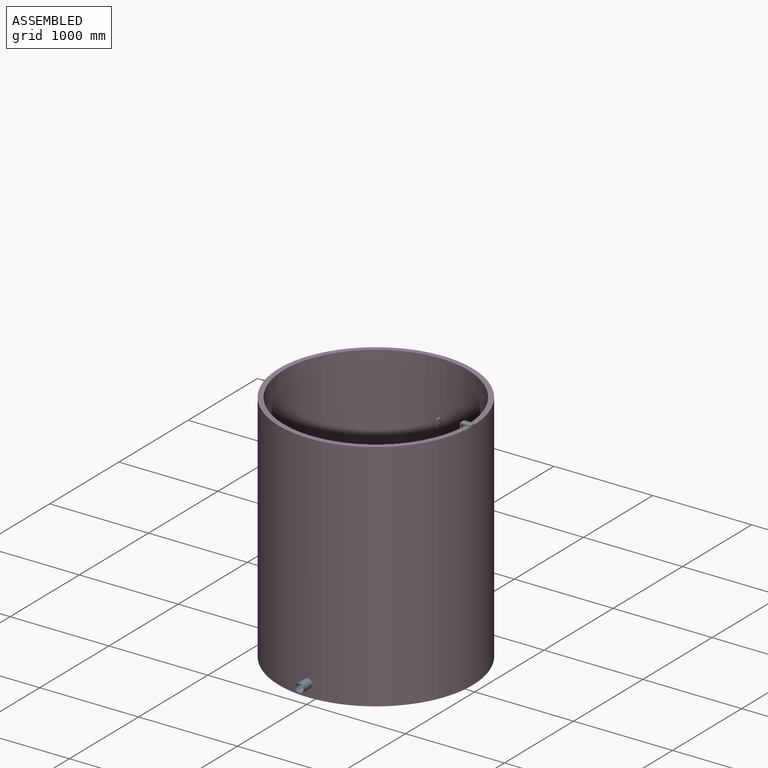
[diagram: assembled view]
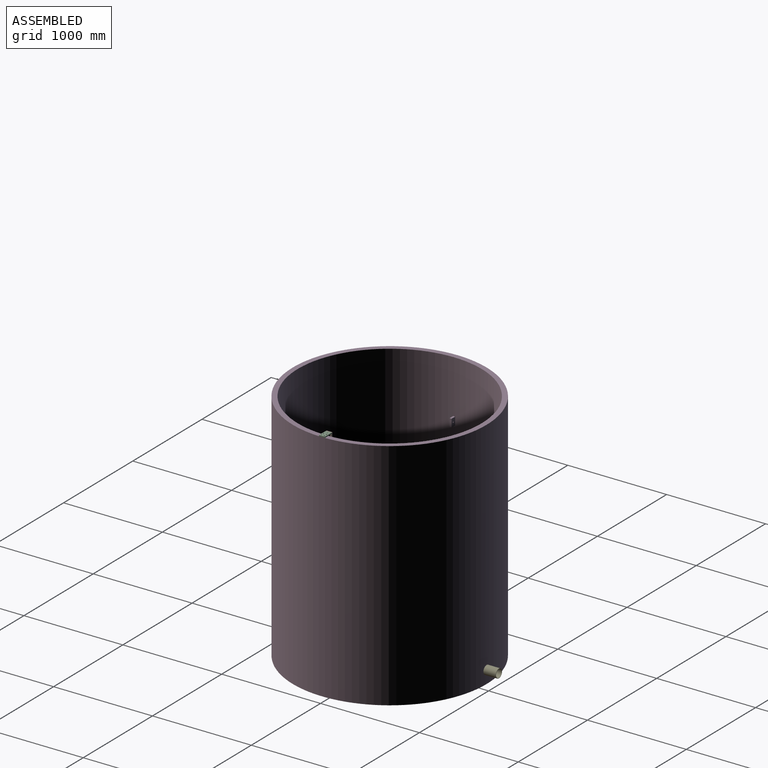
[diagram: assembled view, second angle]
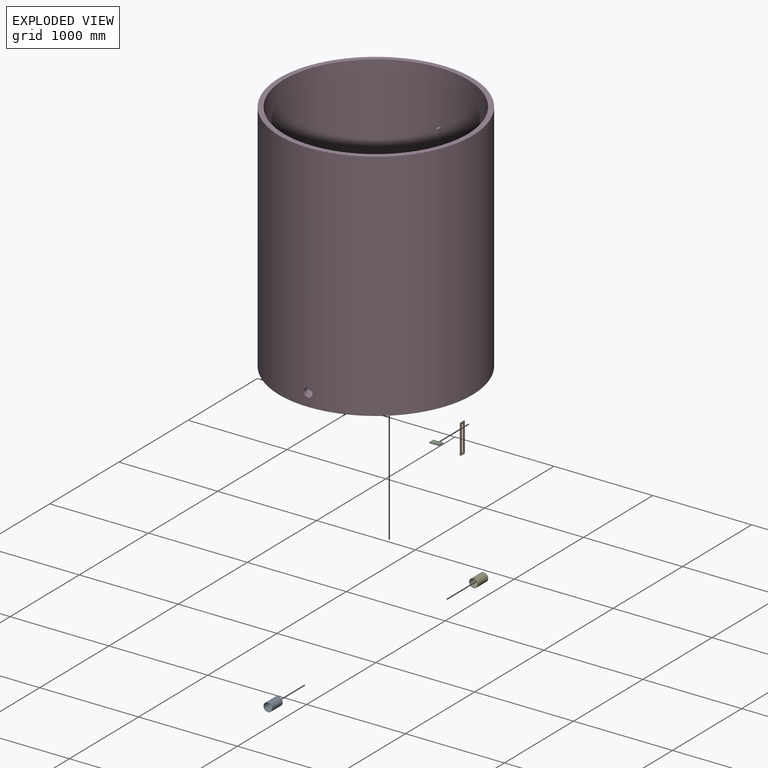
[diagram: exploded view]
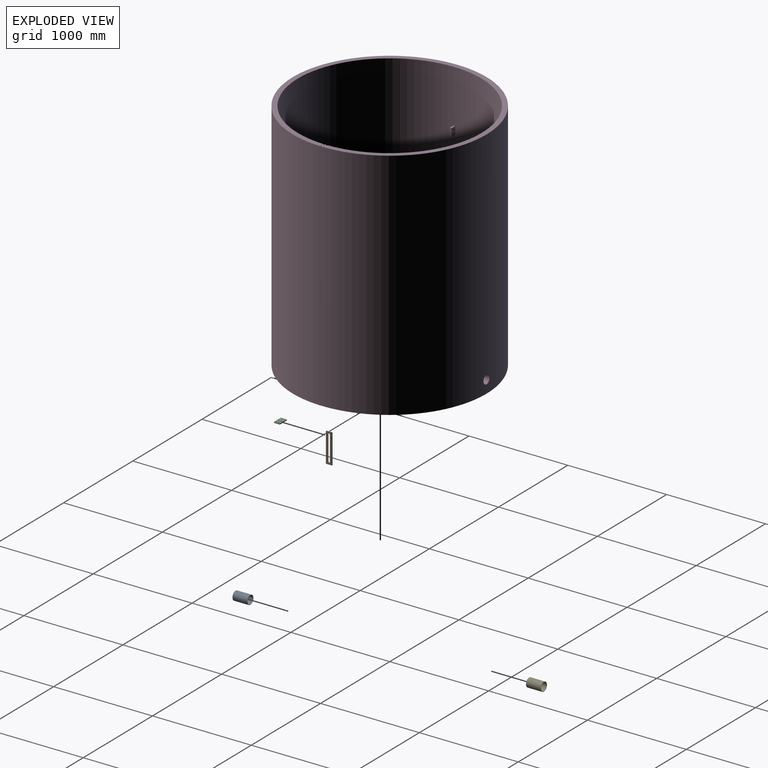
[diagram: exploded view, second angle]
ASSEMBLY  parts=5 mates=4
PART A: 4 faces, bbox 89x150x89 mm
  f0: plane 89x89mm, normal (0,-1,0), area 810.5mm2, adj f2,f3
  f1: plane 89x89mm, normal (0,1,0), area 810.5mm2, adj f2,f3
  f2: cylinder r=44.5mm len=150mm, axis (0,1,0), area 41940.3mm2, adj f0,f1
  f3: cylinder r=41.5mm len=150mm, axis (0,1,0), area 39112.8mm2, adj f0,f1
PART B: 10 faces, bbox 60x10x300 mm
  f0: cylinder r=11mm len=22mm, axis (0,1,0), area 345.6mm2, adj f1,f7,f8,f9
  f1: plane 248x10mm, normal (1,0,0), area 2480mm2, adj f0,f2,f8,f9
  f2: cylinder r=11mm len=22mm, axis (0,1,0), area 345.6mm2, adj f1,f7,f8,f9
  f3: plane 300x10mm, normal (-1,0,0), area 3000mm2, adj f4,f6,f8,f9
  f4: plane 60x10mm, normal (0,0,-1), area 600mm2, adj f3,f5,f8,f9
  f5: plane 300x10mm, normal (1,0,0), area 3000mm2, adj f4,f6,f8,f9
  f6: plane 60x10mm, normal (0,0,1), area 600mm2, adj f3,f5,f8,f9
  f7: plane 248x10mm, normal (-1,0,0), area 2480mm2, adj f0,f2,f8,f9
  f8: plane 300x60mm, normal (0,-1,0), area 12163.9mm2, adj f0,f1,f2,f3,f4,f5,f6,f7
  f9: plane 300x60mm, normal (0,1,0), area 12163.9mm2, adj f0,f1,f2,f3,f4,f5,f6,f7
PART C: 11 faces, bbox 60x100x10 mm
  f0: plane 100x10mm, normal (1,0,0), area 1000mm2, adj f1,f3,f4,f5
  f1: plane 100x60mm, normal (0,0,-1), area 5647.4mm2, adj f0,f2,f4,f5,f6,f7,f8,f9
  f2: plane 100x10mm, normal (-1,0,0), area 1000mm2, adj f1,f3,f4,f5
  f3: plane 100x60mm, normal (0,0,1), area 5647.4mm2, adj f0,f2,f4,f5,f6,f7,f8,f9
  f4: plane 60x10mm, normal (0,1,0), area 600mm2, adj f0,f1,f2,f3
  f5: plane 60x10mm, normal (0,-1,0), area 600mm2, adj f0,f1,f2,f3
  f6: cylinder r=5mm len=10mm, axis (0,0,1), area 314.2mm2, adj f1,f3
  f7: cylinder r=5mm len=10mm, axis (0,0,1), area 314.2mm2, adj f1,f3
  f8: cylinder r=5mm len=10mm, axis (0,0,1), area 314.2mm2, adj f1,f3
  f9: cylinder r=5mm len=10mm, axis (0,0,1), area 314.2mm2, adj f1,f3
  f10: cylinder r=3.5mm len=10mm, axis (0,0,1), area 219.9mm2, adj f1,f3
PART D: 87 faces, bbox 1960x1960x2370 mm
  f0: cylinder r=930mm len=2320mm, axis (0,0,1), area 53465.1mm2, adj f1,f45,f46,f47,f48,f50,f52,f53
  f1: plane 1860x1860mm, normal (0,0,1), area 2717151.2mm2, adj f0,f2,f45,f47
  f2: cylinder r=930mm len=2320mm, axis (0,0,1), area 13444869.7mm2, adj f1,f3,f8,f9,f12,f13,f14,f15
  f3: cylinder r=44.5mm len=89mm, axis (0,-1,0), area 13987.5mm2, adj f2,f4
  f4: cylinder r=980mm len=2370mm, axis (0,0,1), area 14580763.5mm2, adj f3,f5,f8,f46
  f5: plane 1960x1960mm, normal (0,0,-1), area 3016871.4mm2, adj f4,f6,f7,f45,f47
  f6: cylinder r=5mm len=2370mm, axis (0,0,1), area 74455.7mm2, adj f5,f46
  f7: cylinder r=5mm len=2370mm, axis (0,0,1), area 74455.7mm2, adj f5,f46
  f8: cylinder r=44.5mm len=89mm, axis (0,-1,0), area 13988.1mm2, adj f2,f4
  f9: plane 80x49.95mm, normal (0,-1,0), area 3863mm2, adj f2,f10,f11,f12,f14
  f10: cylinder r=6.5mm len=20mm, axis (0,1,0), area 816.8mm2, adj f9,f13
  f11: plane 80x20mm, normal (1,0,0), area 1600mm2, adj f9,f12,f13,f14
  f12: plane 50x20mm, normal (0,0,1), area 999.6mm2, adj f2,f9,f11,f13
  f13: plane 80x49.95mm, normal (0,1,0), area 3863mm2, adj f2,f10,f11,f12,f14
  f14: plane 50x20mm, normal (0,0,-1), area 999.6mm2, adj f2,f9,f11,f13
  f15: plane 80x49.95mm, normal (0,-1,0), area 3863mm2, adj f2,f16,f17,f18,f20
  f16: cylinder r=6.5mm len=20mm, axis (0,1,0), area 816.8mm2, adj f15,f19
  f17: plane 80x20mm, normal (1,0,0), area 1600mm2, adj f15,f18,f19,f20
  f18: plane 50x20mm, normal (0,0,1), area 999.6mm2, adj f2,f15,f17,f19
  f19: plane 80x49.95mm, normal (0,1,0), area 3863mm2, adj f2,f16,f17,f18,f20
  f20: plane 50x20mm, normal (0,0,-1), area 999.6mm2, adj f2,f15,f17,f19
  f21: plane 80x49.95mm, normal (0,-1,0), area 3863mm2, adj f2,f22,f23,f24,f26
  f22: cylinder r=6.5mm len=20mm, axis (0,1,0), area 816.8mm2, adj f21,f25
  f23: plane 80x20mm, normal (1,0,0), area 1600mm2, adj f21,f24,f25,f26
  f24: plane 50x20mm, normal (0,0,1), area 999.6mm2, adj f2,f21,f23,f25
  f25: plane 80x49.95mm, normal (0,1,0), area 3863mm2, adj f2,f22,f23,f24,f26
  f26: plane 50x20mm, normal (0,0,-1), area 999.6mm2, adj f2,f21,f23,f25
  f27: plane 50x20mm, normal (0,0,1), area 999.6mm2, adj f2,f28,f29,f32
  f28: plane 80x20mm, normal (0,-1,0), area 1600mm2, adj f27,f29,f31,f32
  f29: plane 80x49.95mm, normal (1,0,0), area 3863mm2, adj f2,f27,f28,f30,f31
  f30: cylinder r=6.5mm len=20mm, axis (1,0,0), area 816.8mm2, adj f29,f32
  f31: plane 50x20mm, normal (0,0,-1), area 999.6mm2, adj f2,f28,f29,f32
  f32: plane 80x49.95mm, normal (-1,0,0), area 3863mm2, adj f2,f27,f28,f30,f31
  f33: plane 80x49.95mm, normal (-1,0,0), area 3863mm2, adj f2,f34,f35,f36,f38
  f34: cylinder r=6.5mm len=20mm, axis (1,0,0), area 816.8mm2, adj f33,f37
  f35: plane 80x20mm, normal (0,-1,0), area 1600mm2, adj f33,f36,f37,f38
  f36: plane 50x20mm, normal (0,0,1), area 999.6mm2, adj f2,f33,f35,f37
  f37: plane 80x49.95mm, normal (1,0,0), area 3863mm2, adj f2,f34,f35,f36,f38
  f38: plane 50x20mm, normal (0,0,-1), area 999.6mm2, adj f2,f33,f35,f37
  f39: plane 50x20mm, normal (0,0,1), area 999.6mm2, adj f2,f40,f41,f44
  f40: plane 80x20mm, normal (0,-1,0), area 1600mm2, adj f39,f41,f43,f44
  f41: plane 80x49.95mm, normal (1,0,0), area 3863mm2, adj f2,f39,f40,f42,f43
  f42: cylinder r=6.5mm len=20mm, axis (1,0,0), area 816.8mm2, adj f41,f44
  f43: plane 50x20mm, normal (0,0,-1), area 999.6mm2, adj f2,f40,f41,f44
  f44: plane 80x49.95mm, normal (-1,0,0), area 3863mm2, adj f2,f39,f40,f42,f43
  f45: cylinder r=5mm len=2370mm, axis (0,0,1), area 57230.1mm2, adj f0,f1,f2,f5,f46
  f46: plane 1960x1960mm, normal (0,0,1), area 299720.2mm2, adj f0,f2,f4,f6,f7,f45,f47
  f47: cylinder r=5mm len=2370mm, axis (0,0,1), area 57230.1mm2, adj f0,f1,f2,f5,f46
  f48: plane 50x20mm, normal (0,0,1), area 999.6mm2, adj f0,f49,f50,f53
  f49: plane 80x20mm, normal (-1,0,0), area 1600mm2, adj f48,f50,f52,f53
  f50: plane 80x49.95mm, normal (0,-1,0), area 3863mm2, adj f0,f48,f49,f51,f52
  f51: cylinder r=6.5mm len=20mm, axis (0,-1,0), area 816.8mm2, adj f50,f53
  f52: plane 50x20mm, normal (0,0,-1), area 999.6mm2, adj f0,f49,f50,f53
  f53: plane 80x49.95mm, normal (0,1,0), area 3863mm2, adj f0,f48,f49,f51,f52
  f54: plane 50x20mm, normal (0,0,1), area 999.6mm2, adj f0,f55,f56,f59
  f55: plane 80x20mm, normal (-1,0,0), area 1600mm2, adj f54,f56,f58,f59
  f56: plane 80x49.95mm, normal (0,-1,0), area 3863mm2, adj f0,f54,f55,f57,f58
  f57: cylinder r=6.5mm len=20mm, axis (0,-1,0), area 816.8mm2, adj f56,f59
  f58: plane 50x20mm, normal (0,0,-1), area 999.6mm2, adj f0,f55,f56,f59
  f59: plane 80x49.95mm, normal (0,1,0), area 3863mm2, adj f0,f54,f55,f57,f58
  f60: plane 50x20mm, normal (0,0,1), area 999.6mm2, adj f0,f61,f62,f65
  f61: plane 80x20mm, normal (-1,0,0), area 1600mm2, adj f60,f62,f64,f65
  f62: plane 80x49.95mm, normal (0,-1,0), area 3863mm2, adj f0,f60,f61,f63,f64
  f63: cylinder r=6.5mm len=20mm, axis (0,-1,0), area 816.8mm2, adj f62,f65
  f64: plane 50x20mm, normal (0,0,-1), area 999.6mm2, adj f0,f61,f62,f65
  f65: plane 80x49.95mm, normal (0,1,0), area 3863mm2, adj f0,f60,f61,f63,f64
  f66: cylinder r=930mm len=80mm, axis (0,0,1), area 1600mm2, adj f67,f69,f71,f72
  f67: plane 50x20mm, normal (0,0,-1), area 999.6mm2, adj f66,f68,f69,f72
  f68: plane 80x20mm, normal (0,1,0), area 1600mm2, adj f67,f69,f71,f72
  f69: plane 80x49.95mm, normal (-1,0,0), area 3863mm2, adj f66,f67,f68,f70,f71
  f70: cylinder r=6.5mm len=20mm, axis (-1,0,0), area 816.8mm2, adj f69,f72
  f71: plane 50x20mm, normal (0,0,1), area 999.6mm2, adj f66,f68,f69,f72
  f72: plane 80x49.95mm, normal (1,0,0), area 3863mm2, adj f66,f67,f68,f70,f71
  f73: cylinder r=930mm len=80mm, axis (0,0,1), area 1600mm2, adj f74,f76,f78,f79
  f74: plane 50x20mm, normal (0,0,-1), area 999.6mm2, adj f73,f75,f76,f79
  f75: plane 80x20mm, normal (0,1,0), area 1600mm2, adj f74,f76,f78,f79
  f76: plane 80x49.95mm, normal (-1,0,0), area 3863mm2, adj f73,f74,f75,f77,f78
  f77: cylinder r=6.5mm len=20mm, axis (-1,0,0), area 816.8mm2, adj f76,f79
  f78: plane 50x20mm, normal (0,0,1), area 999.6mm2, adj f73,f75,f76,f79
  f79: plane 80x49.95mm, normal (1,0,0), area 3863mm2, adj f73,f74,f75,f77,f78
  f80: cylinder r=930mm len=80mm, axis (0,0,1), area 1600mm2, adj f81,f83,f85,f86
  f81: plane 50x20mm, normal (0,0,-1), area 999.6mm2, adj f80,f82,f83,f86
  f82: plane 80x20mm, normal (0,1,0), area 1600mm2, adj f81,f83,f85,f86
  f83: plane 80x49.95mm, normal (-1,0,0), area 3863mm2, adj f80,f81,f82,f84,f85
  f84: cylinder r=6.5mm len=20mm, axis (-1,0,0), area 816.8mm2, adj f83,f86
  f85: plane 50x20mm, normal (0,0,1), area 999.6mm2, adj f80,f82,f83,f86
  f86: plane 80x49.95mm, normal (1,0,0), area 3863mm2, adj f80,f81,f82,f84,f85
PART E: 4 faces, bbox 89x150x89 mm
  f0: plane 89x89mm, normal (0,1,0), area 810.5mm2, adj f2,f3
  f1: plane 89x89mm, normal (0,-1,0), area 810.5mm2, adj f2,f3
  f2: cylinder r=44.5mm len=150mm, axis (0,-1,0), area 41940.3mm2, adj f0,f1
  f3: cylinder r=41.5mm len=150mm, axis (0,-1,0), area 39112.8mm2, adj f0,f1
PLACE A t=(0,25.53,1160)mm
PLACE B rot(axis=(0,0,-1),90deg) t=(879.54,-30,2080)mm
PLACE C rot(axis=(0,0,-1),90deg) t=(879.54,-30,2080)mm
PLACE D t=(0,0,1160)mm fixed
PLACE E t=(0,-25.53,1160)mm
MATE fastened E.f2 <-> D.f3  axis (0,-1,0) through (0,954.47,130)mm
MATE fastened D.f6 <-> C.f6  axis (0,0,1) through (965.54,16,2370)mm
MATE fastened A.f2 <-> D.f3  axis (0,1,0) through (0,-954.47,130)mm
MATE fastened C.f5 <-> B.f9  axis (-1,0,0) through (879.54,0,2380)mm
